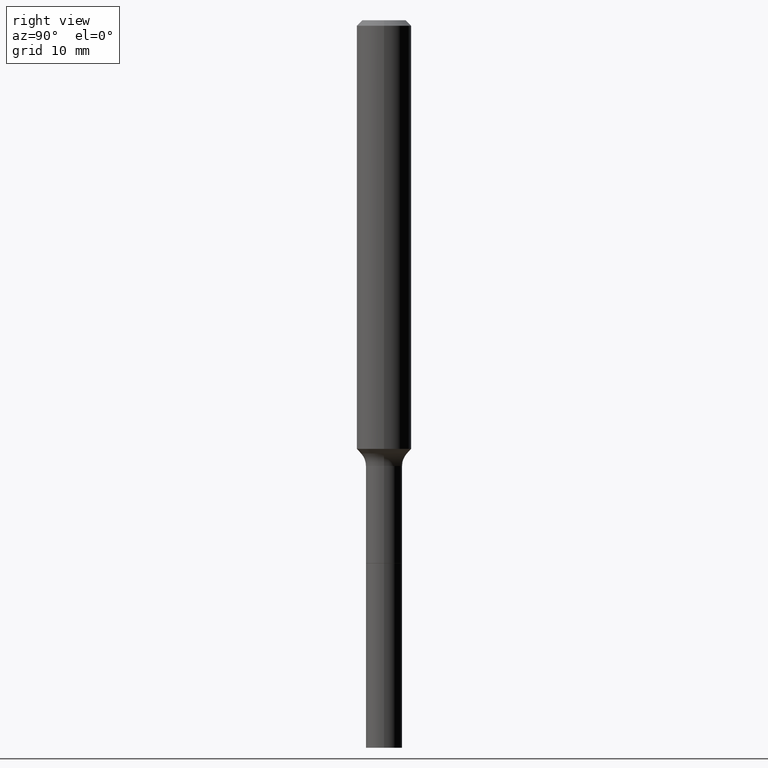
[diagram: clean part render]
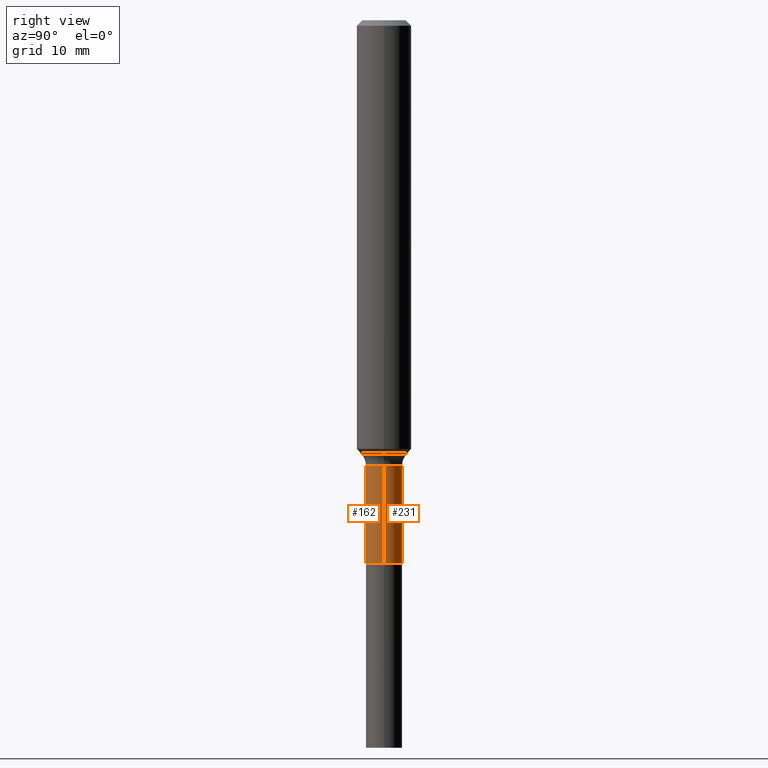
[diagram: same view with one multi-face feature highlighted, each face labeled with its STEP entity id]
A machine part, right view. The highlighted faces form ONE feature: a constant-radius fillet chain: 2 tangent blend faces with common blend radius 2.0002 mm. The faces share edges in the B-rep.
Their STEP definitions:
[1] entity #231 (Cylinder):
#68 = ORIENTED_EDGE ( 'NONE', *, *, #448, .T. ) ;
#87 = AXIS2_PLACEMENT_3D ( 'NONE', #161, #118, #397 ) ;
#92 = DIRECTION ( 'NONE',  ( -2.445468806185136877E-29, 3.491481338843145188E-15, 1.000000000000000000 ) ) ;
#98 = VERTEX_POINT ( 'NONE', #227 ) ;
#115 = CIRCLE ( 'NONE', #176, 0.07875000000000000056 ) ;
#116 = VECTOR ( 'NONE', #140, 39.37007874015748143 ) ;
#118 = DIRECTION ( 'NONE',  ( -2.445468806185136597E-29, 3.491481338843145583E-15, 1.000000000000000000 ) ) ;
#137 = LINE ( 'NONE', #493, #116 ) ;
#140 = DIRECTION ( 'NONE',  ( -2.445468806185136877E-29, 3.491481338843145188E-15, 1.000000000000000000 ) ) ;
#143 = CARTESIAN_POINT ( 'NONE',  ( 0.07875000000000000056, -8.755238605283071797E-15, -2.350100000000000300 ) ) ;
#157 = CYLINDRICAL_SURFACE ( 'NONE', #193, 0.07874999999999997280 ) ;
#159 = VECTOR ( 'NONE', #92, 39.37007874015748143 ) ;
#161 = CARTESIAN_POINT ( 'NONE',  ( 4.718776608414840041E-29, -6.737162391431733996E-15, -1.929599999999999982 ) ) ;
#164 = CARTESIAN_POINT ( 'NONE',  ( -0.07874999999999994504, -6.911693938512427817E-15, -1.929599999999999982 ) ) ;
#176 = AXIS2_PLACEMENT_3D ( 'NONE', #435, #427, #464 ) ;
#193 = AXIS2_PLACEMENT_3D ( 'NONE', #317, #473, #198 ) ;
#198 = DIRECTION ( 'NONE',  ( 1.000000000000000000, -6.982962677686267499E-15, 4.876176775795935793E-29 ) ) ;
#209 = CIRCLE ( 'NONE', #87, 0.07874999999999994504 ) ;
#212 = EDGE_CURVE ( 'NONE', #486, #283, #115, .T. ) ;
#227 = CARTESIAN_POINT ( 'NONE',  ( 0.07874999999999994504, -7.287070702299526553E-15, -1.929599999999999982 ) ) ;
#231 = ADVANCED_FACE ( 'NONE', ( #276 ), #157, .T. ) ;
#255 = CARTESIAN_POINT ( 'NONE',  ( 0.07874999999999997280, -5.499083108677933457E-16, 3.839989210939298316E-30 ) ) ;
#273 = EDGE_CURVE ( 'NONE', #98, #402, #209, .T. ) ;
#276 = FACE_OUTER_BOUND ( 'NONE', #328, .T. ) ;
#283 = VERTEX_POINT ( 'NONE', #439 ) ;
#317 = CARTESIAN_POINT ( 'NONE',  ( 0.000000000000000000, 0.000000000000000000, 0.000000000000000000 ) ) ;
#321 = ORIENTED_EDGE ( 'NONE', *, *, #492, .F. ) ;
#328 = EDGE_LOOP ( 'NONE', ( #446, #68, #395, #321 ) ) ;
#395 = ORIENTED_EDGE ( 'NONE', *, *, #273, .F. ) ;
#397 = DIRECTION ( 'NONE',  ( 1.000000000000000000, -6.982962677686266711E-15, 0.000000000000000000 ) ) ;
#402 = VERTEX_POINT ( 'NONE', #164 ) ;
#427 = DIRECTION ( 'NONE',  ( -2.445468806185136597E-29, 3.491481338843145583E-15, 1.000000000000000000 ) ) ;
#435 = CARTESIAN_POINT ( 'NONE',  ( 5.747096241415690460E-29, -8.205330294415278451E-15, -2.350100000000000300 ) ) ;
#439 = CARTESIAN_POINT ( 'NONE',  ( -0.07875000000000000056, -6.911693938512427817E-15, -2.350100000000000300 ) ) ;
#446 = ORIENTED_EDGE ( 'NONE', *, *, #212, .T. ) ;
#448 = EDGE_CURVE ( 'NONE', #283, #402, #137, .T. ) ;
#454 = LINE ( 'NONE', #255, #159 ) ;
#464 = DIRECTION ( 'NONE',  ( 1.000000000000000000, -6.982962677686274599E-15, 0.000000000000000000 ) ) ;
#473 = DIRECTION ( 'NONE',  ( -2.445468806185136597E-29, 3.491481338843145583E-15, 1.000000000000000000 ) ) ;
#486 = VERTEX_POINT ( 'NONE', #143 ) ;
#492 = EDGE_CURVE ( 'NONE', #486, #98, #454, .T. ) ;
#493 = CARTESIAN_POINT ( 'NONE',  ( -0.07874999999999997280, 5.595524044110787031E-16, -3.873661383575737091E-30 ) ) ;
[2] entity #162 (Cylinder):
#26 = CYLINDRICAL_SURFACE ( 'NONE', #199, 0.07874999999999997280 ) ;
#32 = DIRECTION ( 'NONE',  ( 1.000000000000000000, -6.982962677686274599E-15, 0.000000000000000000 ) ) ;
#36 = AXIS2_PLACEMENT_3D ( 'NONE', #490, #372, #457 ) ;
#65 = CARTESIAN_POINT ( 'NONE',  ( 0.000000000000000000, 0.000000000000000000, 0.000000000000000000 ) ) ;
#89 = EDGE_CURVE ( 'NONE', #283, #486, #459, .T. ) ;
#92 = DIRECTION ( 'NONE',  ( -2.445468806185136877E-29, 3.491481338843145188E-15, 1.000000000000000000 ) ) ;
#98 = VERTEX_POINT ( 'NONE', #227 ) ;
#116 = VECTOR ( 'NONE', #140, 39.37007874015748143 ) ;
#117 = DIRECTION ( 'NONE',  ( -2.445468806185136597E-29, 3.491481338843145583E-15, 1.000000000000000000 ) ) ;
#137 = LINE ( 'NONE', #493, #116 ) ;
#140 = DIRECTION ( 'NONE',  ( -2.445468806185136877E-29, 3.491481338843145188E-15, 1.000000000000000000 ) ) ;
#143 = CARTESIAN_POINT ( 'NONE',  ( 0.07875000000000000056, -8.755238605283071797E-15, -2.350100000000000300 ) ) ;
#159 = VECTOR ( 'NONE', #92, 39.37007874015748143 ) ;
#162 = ADVANCED_FACE ( 'NONE', ( #387 ), #26, .T. ) ;
#164 = CARTESIAN_POINT ( 'NONE',  ( -0.07874999999999994504, -6.911693938512427817E-15, -1.929599999999999982 ) ) ;
#167 = CIRCLE ( 'NONE', #36, 0.07874999999999994504 ) ;
#197 = DIRECTION ( 'NONE',  ( 1.000000000000000000, -6.982962677686267499E-15, 4.876176775795935793E-29 ) ) ;
#199 = AXIS2_PLACEMENT_3D ( 'NONE', #65, #275, #197 ) ;
#208 = ORIENTED_EDGE ( 'NONE', *, *, #448, .F. ) ;
#211 = ORIENTED_EDGE ( 'NONE', *, *, #498, .F. ) ;
#227 = CARTESIAN_POINT ( 'NONE',  ( 0.07874999999999994504, -7.287070702299526553E-15, -1.929599999999999982 ) ) ;
#255 = CARTESIAN_POINT ( 'NONE',  ( 0.07874999999999997280, -5.499083108677933457E-16, 3.839989210939298316E-30 ) ) ;
#268 = AXIS2_PLACEMENT_3D ( 'NONE', #425, #117, #32 ) ;
#275 = DIRECTION ( 'NONE',  ( -2.445468806185136597E-29, 3.491481338843145583E-15, 1.000000000000000000 ) ) ;
#283 = VERTEX_POINT ( 'NONE', #439 ) ;
#351 = ORIENTED_EDGE ( 'NONE', *, *, #89, .T. ) ;
#371 = EDGE_LOOP ( 'NONE', ( #208, #351, #407, #211 ) ) ;
#372 = DIRECTION ( 'NONE',  ( -2.445468806185136597E-29, 3.491481338843145583E-15, 1.000000000000000000 ) ) ;
#387 = FACE_OUTER_BOUND ( 'NONE', #371, .T. ) ;
#402 = VERTEX_POINT ( 'NONE', #164 ) ;
#407 = ORIENTED_EDGE ( 'NONE', *, *, #492, .T. ) ;
#425 = CARTESIAN_POINT ( 'NONE',  ( 5.747096241415690460E-29, -8.205330294415278451E-15, -2.350100000000000300 ) ) ;
#439 = CARTESIAN_POINT ( 'NONE',  ( -0.07875000000000000056, -6.911693938512427817E-15, -2.350100000000000300 ) ) ;
#448 = EDGE_CURVE ( 'NONE', #283, #402, #137, .T. ) ;
#454 = LINE ( 'NONE', #255, #159 ) ;
#457 = DIRECTION ( 'NONE',  ( 1.000000000000000000, -6.982962677686266711E-15, 0.000000000000000000 ) ) ;
#459 = CIRCLE ( 'NONE', #268, 0.07875000000000000056 ) ;
#486 = VERTEX_POINT ( 'NONE', #143 ) ;
#490 = CARTESIAN_POINT ( 'NONE',  ( 4.718776608414840041E-29, -6.737162391431733996E-15, -1.929599999999999982 ) ) ;
#492 = EDGE_CURVE ( 'NONE', #486, #98, #454, .T. ) ;
#493 = CARTESIAN_POINT ( 'NONE',  ( -0.07874999999999997280, 5.595524044110787031E-16, -3.873661383575737091E-30 ) ) ;
#498 = EDGE_CURVE ( 'NONE', #402, #98, #167, .T. ) ;